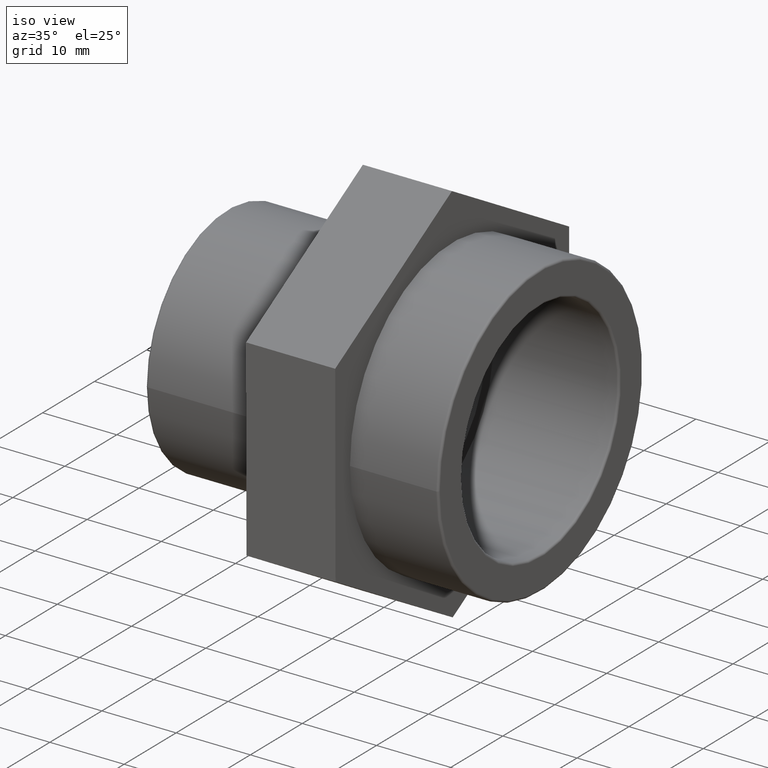
[diagram: clean part render]
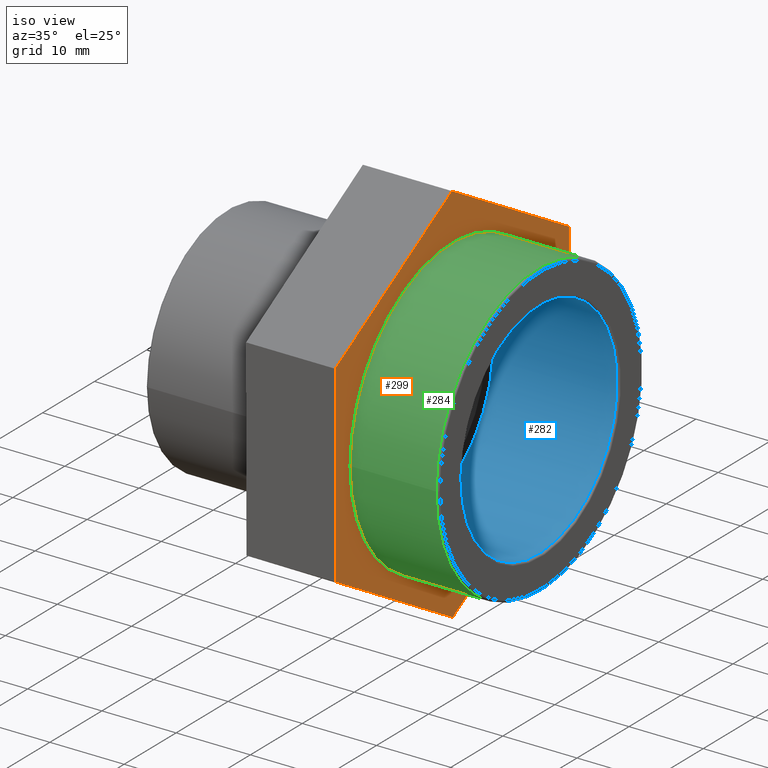
[diagram: same view with three faces highlighted in distinct colors, each labeled with its STEP entity id]
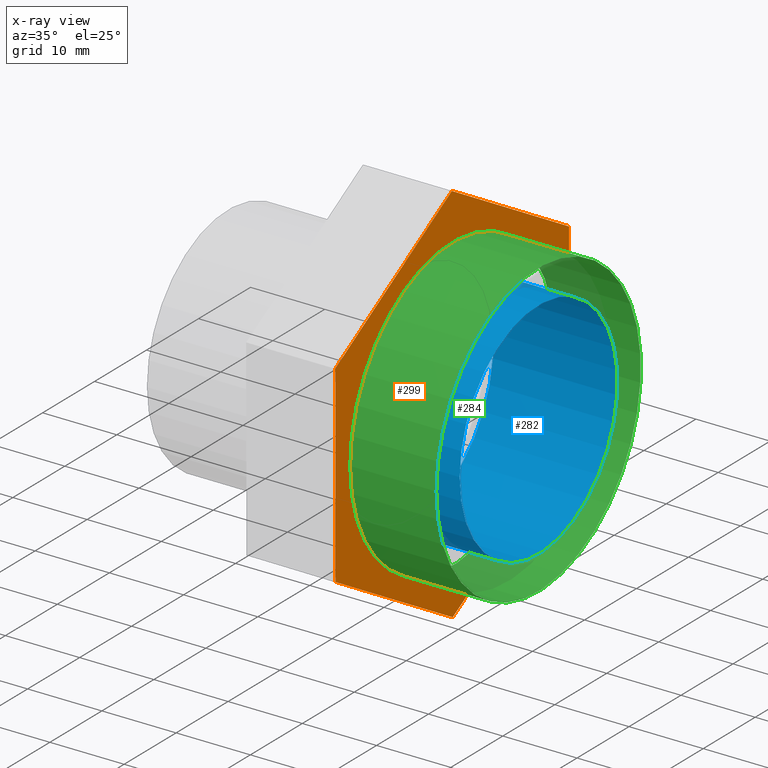
[diagram: x-ray of the same camera — body ghosted, the three highlighted faces saturated]
A machine part, iso view with three faces highlighted in distinct colors.
The next image is the same camera in x-ray (body ghosted, the three faces saturated) — at least one of them is partly hidden behind the body in this view.
Their STEP definitions:

[orange] entity #299 — the highlighted planar face has unit normal (1, 0, 0).
#17=LINE('',#470,#35);
#21=LINE('',#477,#39);
#24=LINE('',#483,#42);
#27=LINE('',#491,#45);
#30=LINE('',#495,#48);
#32=LINE('',#498,#50);
#35=VECTOR('',#388,25.9807621135331);
#39=VECTOR('',#394,25.9807621135331);
#42=VECTOR('',#399,25.9807621135331);
#45=VECTOR('',#404,25.9807621135331);
#48=VECTOR('',#409,25.9807621135331);
#50=VECTOR('',#413,25.9807621135332);
#66=PLANE('',#336);
#81=FACE_BOUND('',#137,.T.);
#102=FACE_OUTER_BOUND('',#136,.T.);
#136=EDGE_LOOP('',(#262,#263,#264,#265,#266,#267));
#137=EDGE_LOOP('',(#268));
#145=CIRCLE('',#313,19.68915);
#159=VERTEX_POINT('',#444);
#168=VERTEX_POINT('',#467);
#169=VERTEX_POINT('',#469);
#171=VERTEX_POINT('',#475);
#173=VERTEX_POINT('',#481);
#176=VERTEX_POINT('',#488);
#177=VERTEX_POINT('',#490);
#185=EDGE_CURVE('',#159,#159,#145,.T.);
#194=EDGE_CURVE('',#168,#169,#17,.T.);
#198=EDGE_CURVE('',#171,#168,#21,.T.);
#201=EDGE_CURVE('',#173,#171,#24,.T.);
#204=EDGE_CURVE('',#176,#177,#27,.T.);
#207=EDGE_CURVE('',#169,#176,#30,.T.);
#209=EDGE_CURVE('',#177,#173,#32,.T.);
#262=ORIENTED_EDGE('',*,*,#207,.F.);
#263=ORIENTED_EDGE('',*,*,#194,.F.);
#264=ORIENTED_EDGE('',*,*,#198,.F.);
#265=ORIENTED_EDGE('',*,*,#201,.F.);
#266=ORIENTED_EDGE('',*,*,#209,.F.);
#267=ORIENTED_EDGE('',*,*,#204,.F.);
#268=ORIENTED_EDGE('',*,*,#185,.T.);
#299=ADVANCED_FACE('',(#102,#81),#66,.T.);
#313=AXIS2_PLACEMENT_3D('',#445,#360,#361);
#336=AXIS2_PLACEMENT_3D('',#506,#424,#425);
#360=DIRECTION('center_axis',(-1.,-1.83697019872103E-16,0.));
#361=DIRECTION('ref_axis',(0.,0.,1.));
#388=DIRECTION('',(5.28441385864193E-19,-0.00287670091889414,0.999995862287351));
#394=DIRECTION('',(1.59349848248331E-16,-0.867460170879618,0.497506635068824));
#399=DIRECTION('',(1.58821406862467E-16,-0.864583469960724,-0.502489227218528));
#404=DIRECTION('',(-1.59349848248331E-16,0.867460170879618,-0.497506635068823));
#409=DIRECTION('',(-1.58821406862467E-16,0.864583469960724,0.502489227218528));
#413=DIRECTION('',(-5.2844138586413E-19,0.00287670091889379,-0.999995862287351));
#424=DIRECTION('center_axis',(1.,1.83697019872103E-16,0.));
#425=DIRECTION('ref_axis',(0.,0.,-1.));
#444=CARTESIAN_POINT('',(9.205,-19.68915,0.));
#445=CARTESIAN_POINT('Origin',(9.205,5.56785667232344E-15,0.));
#467=CARTESIAN_POINT('',(9.205,-22.4625374603426,-13.0550530769777));
#469=CARTESIAN_POINT('',(9.205,-22.5372763425882,12.9256015356274));
#470=CARTESIAN_POINT('',(9.205,-22.4625374603426,-13.0550530769777));
#475=CARTESIAN_POINT('',(9.205,0.0747388822455624,-25.9806546126051));
#477=CARTESIAN_POINT('',(9.205,0.0747388822455624,-25.9806546126051));
#481=CARTESIAN_POINT('',(9.20499999999999,22.5372763425882,-12.9256015356275));
#483=CARTESIAN_POINT('',(9.20499999999999,22.5372763425882,-12.9256015356275));
#488=CARTESIAN_POINT('',(9.205,-0.0747388822455702,25.9806546126051));
#490=CARTESIAN_POINT('',(9.20499999999999,22.4625374603426,13.0550530769777));
#491=CARTESIAN_POINT('',(9.205,-0.0747388822455702,25.9806546126051));
#495=CARTESIAN_POINT('',(9.205,-22.5372763425882,12.9256015356274));
#498=CARTESIAN_POINT('',(9.20499999999999,22.4625374603426,13.0550530769777));
#506=CARTESIAN_POINT('Origin',(9.205,-22.5,0.));

[blue] entity #282 — the highlighted cylindrical surface (bore or boss wall) has radius 15.1455 mm, axis along (-1, -0, 0).
#51=CYLINDRICAL_SURFACE('',#308,15.1455);
#70=FACE_BOUND('',#109,.T.);
#85=FACE_OUTER_BOUND('',#108,.T.);
#108=EDGE_LOOP('',(#216));
#109=EDGE_LOOP('',(#217));
#140=CIRCLE('',#304,15.1455);
#143=CIRCLE('',#309,15.1455);
#154=VERTEX_POINT('',#430);
#157=VERTEX_POINT('',#438);
#180=EDGE_CURVE('',#154,#154,#140,.T.);
#183=EDGE_CURVE('',#157,#157,#143,.T.);
#216=ORIENTED_EDGE('',*,*,#183,.T.);
#217=ORIENTED_EDGE('',*,*,#180,.F.);
#282=ADVANCED_FACE('',(#85,#70),#51,.F.);
#304=AXIS2_PLACEMENT_3D('',#431,#342,#343);
#308=AXIS2_PLACEMENT_3D('',#437,#350,#351);
#309=AXIS2_PLACEMENT_3D('',#439,#352,#353);
#342=DIRECTION('center_axis',(-1.,-1.83697019872103E-16,0.));
#343=DIRECTION('ref_axis',(-1.83259553105734E-16,1.,6.12323399573677E-17));
#350=DIRECTION('center_axis',(-1.,-1.83697019872103E-16,0.));
#351=DIRECTION('ref_axis',(1.84139490753436E-16,-1.,0.));
#352=DIRECTION('center_axis',(-1.,-1.83697019872103E-16,0.));
#353=DIRECTION('ref_axis',(0.,0.,1.));
#430=CARTESIAN_POINT('',(20.80209,-15.1455,9.27394404824312E-16));
#431=CARTESIAN_POINT('Origin',(20.80209,7.69820754451201E-15,0.));
#437=CARTESIAN_POINT('Origin',(12.605,6.19242653988859E-15,0.));
#438=CARTESIAN_POINT('',(4.105,-15.1455,0.));
#439=CARTESIAN_POINT('Origin',(4.105,4.63100187097572E-15,0.));

[green] entity #284 — the highlighted cylindrical surface (bore or boss wall) has radius 19.6892 mm, axis along (-1, -0, 0).
#52=CYLINDRICAL_SURFACE('',#312,19.68915);
#72=FACE_BOUND('',#113,.T.);
#87=FACE_OUTER_BOUND('',#112,.T.);
#112=EDGE_LOOP('',(#220));
#113=EDGE_LOOP('',(#221));
#144=CIRCLE('',#311,19.68915);
#145=CIRCLE('',#313,19.68915);
#158=VERTEX_POINT('',#441);
#159=VERTEX_POINT('',#444);
#184=EDGE_CURVE('',#158,#158,#144,.T.);
#185=EDGE_CURVE('',#159,#159,#145,.T.);
#220=ORIENTED_EDGE('',*,*,#185,.F.);
#221=ORIENTED_EDGE('',*,*,#184,.F.);
#284=ADVANCED_FACE('',(#87,#72),#52,.T.);
#311=AXIS2_PLACEMENT_3D('',#442,#356,#357);
#312=AXIS2_PLACEMENT_3D('',#443,#358,#359);
#313=AXIS2_PLACEMENT_3D('',#445,#360,#361);
#356=DIRECTION('center_axis',(1.,1.83697019872103E-16,0.));
#357=DIRECTION('ref_axis',(-1.83259553105734E-16,1.,6.12323399573677E-17));
#358=DIRECTION('center_axis',(-1.,-1.83697019872103E-16,0.));
#359=DIRECTION('ref_axis',(1.84139490753436E-16,-1.,0.));
#360=DIRECTION('center_axis',(-1.,-1.83697019872103E-16,0.));
#361=DIRECTION('ref_axis',(0.,0.,1.));
#441=CARTESIAN_POINT('',(20.80209,-19.68915,-3.61683817881482E-15));
#442=CARTESIAN_POINT('Origin',(20.80209,7.69820754451201E-15,0.));
#443=CARTESIAN_POINT('Origin',(15.155,6.66085394056245E-15,0.));
#444=CARTESIAN_POINT('',(9.205,-19.68915,0.));
#445=CARTESIAN_POINT('Origin',(9.205,5.56785667232344E-15,0.));